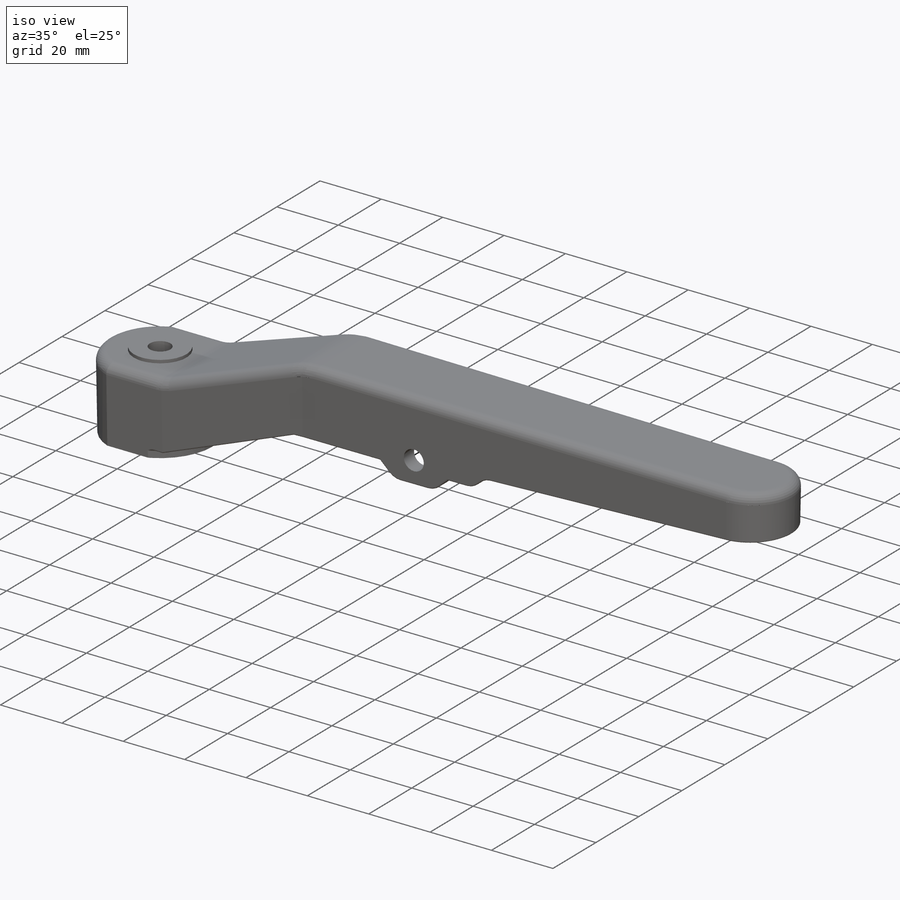
[diagram: iso view]
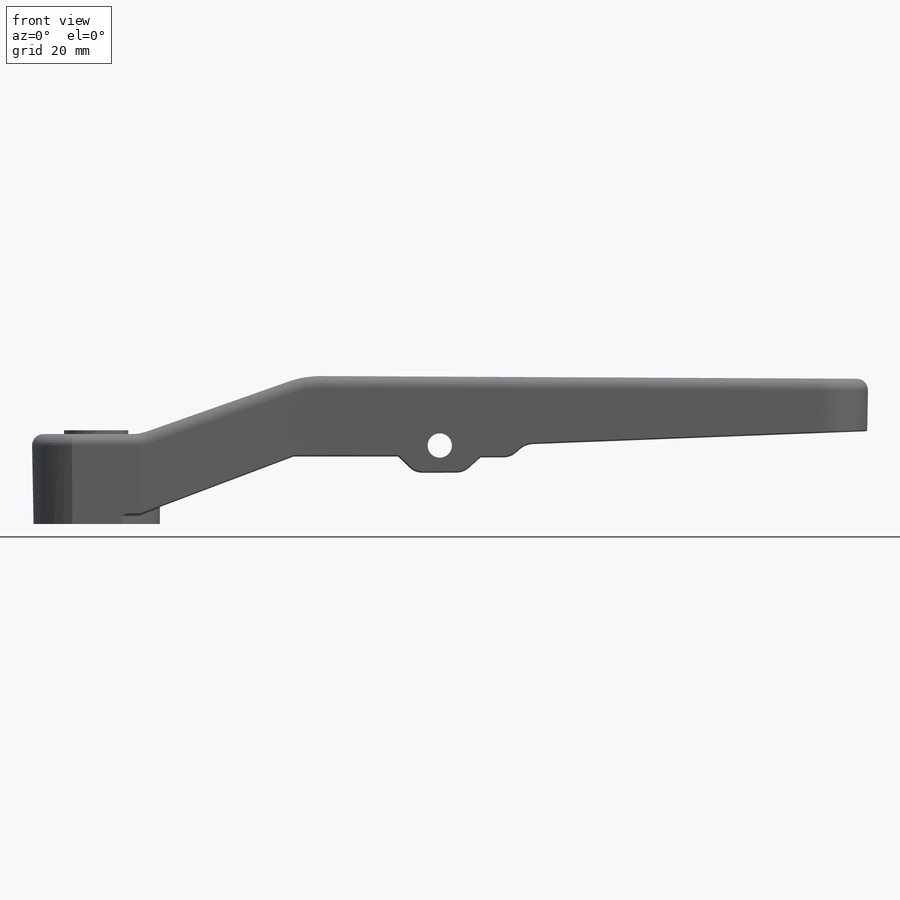
[diagram: front view]
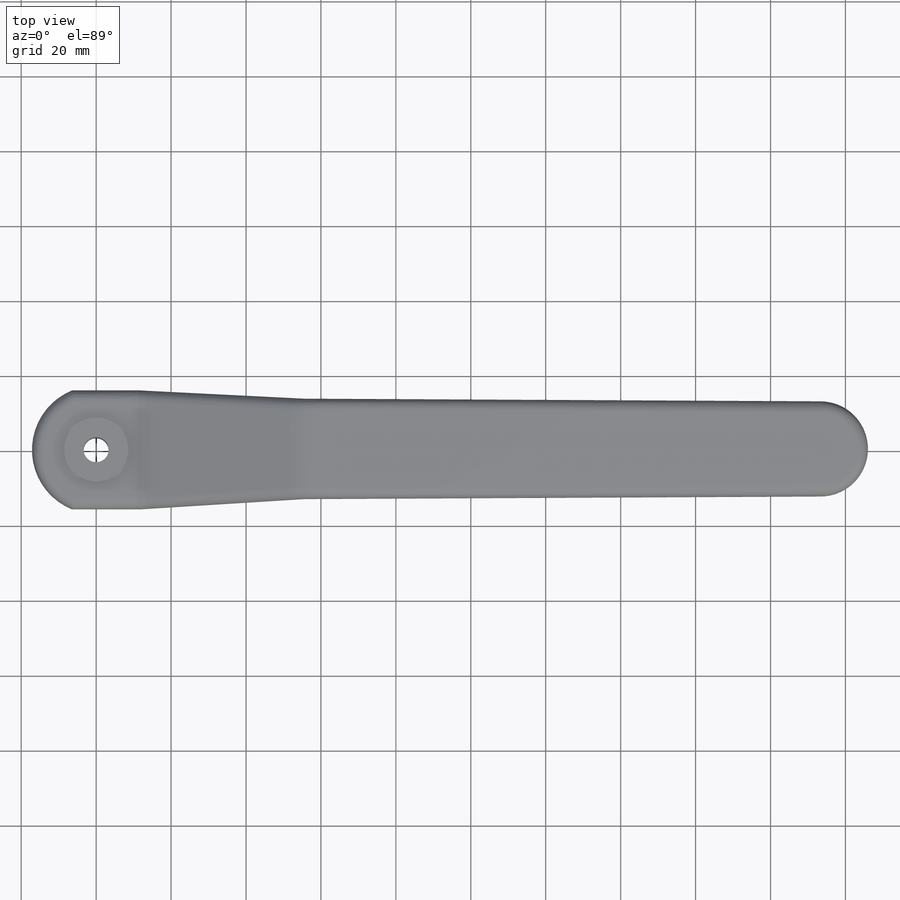
[diagram: top view]
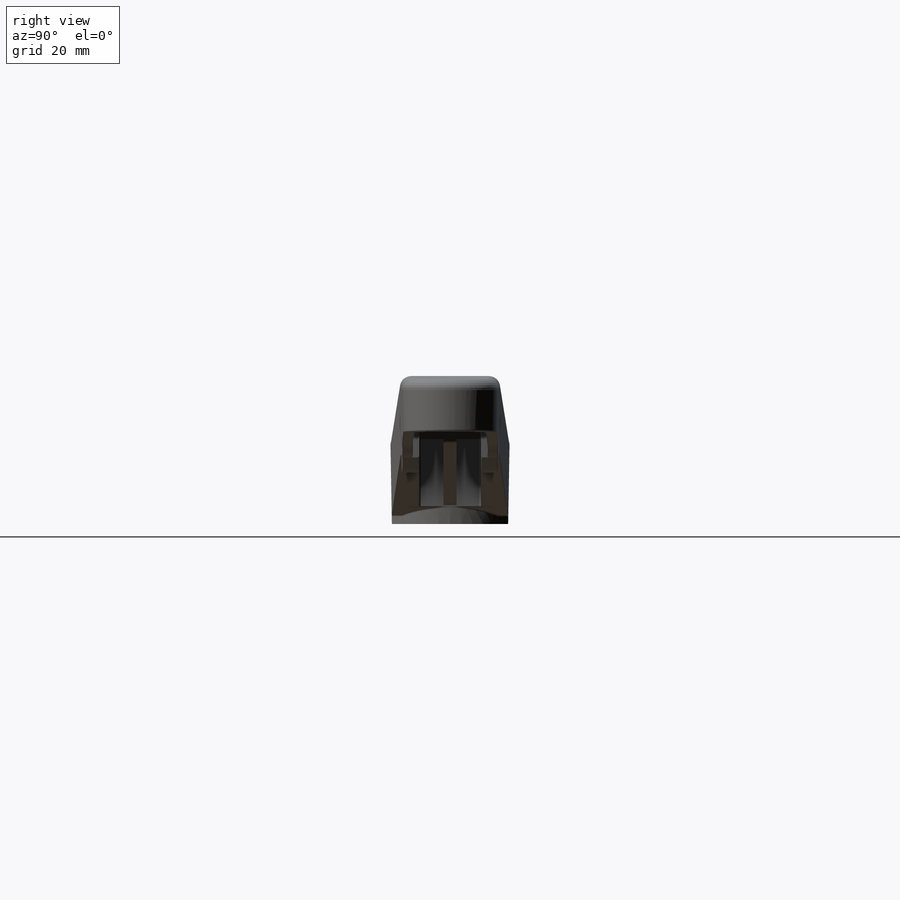
[diagram: right view]
SOLIDWORKS PART (.sldprt)
format: sldprt  version: not decoded by parser v0  size: 1,412,096 bytes
history: native  units: mm
features: sketch x23, fillet x15, extrude x10, cut_extrude x5, plane x4, mirror x2, material x1, shell x1, sweep x1 (+13 scaffold rows collapsed)
feature tree (75):
  scaffold x13  (default folders/planes/origin — collapsed)
  material  "Material <not specified>"
  sketch  "Sketch8"  dims[D1=17.0mm D2=31.5mm D3=18.0mm]
  extrude  "Boss-Extrude6"  Depth=21.5mm
  sketch  "Sketch9"  dims[D1=24.0mm D2=44.0mm]
  sketch  "Sketch10"  dims[D1=0.0mm]
  plane  "Plane1"
  sketch  "Sketch11"  dims[D1=26.0mm D2=26.0mm]
  sketch  "Sketch13"  dims[D1=150.0mm]
  sketch  "Sketch14"  dims[D1=0.0mm]
  plane  "Plane2"
  sketch  "Sketch15"  dims[D1=24.5mm D2=24.5mm D3=13.0mm]
  extrude  "Loft2"  [1 undecoded]
  sketch  "Sketch16"  dims[c1.D1=14.0mm c1.D2=17.5mm c1.D3=91.0mm c1.D4=21.5mm c1.D5=8.0mm c1.D6=150.0mm c2.D6=~0.286477deg c3.D6=28.0mm c3.D7=22.0mm c3.D8=125.0mm c3.D9=150.0mm c4.D9=~0.286477deg c5.D9=150.0mm c6.D9=~0.286477deg c7.D9=21.5mm c7.D10=194.0mm c7.D11=21.5mm c8.D10=19.0mm]
  cut_extrude  "Cut-Extrude3"  Depth=40mm
  plane  "Plane3"  Offset=22mm
  shell  "Shell1"  Thickness=2.8mm
  plane  "Plane4"  Offset=0mm
  sketch  "Sketch34"  dims[D1=6.5mm D2=6.5mm D3=4.5mm D4=4.5mm]
  cut_extrude  "Cut-Extrude5"  Depth=50mm
  fillet  "Fillet4"  Radius=5mm
  fillet  "Fillet5"  Radius=5mm
  sketch  "Sketch49"  dims[D1=34.0mm]
  extrude  "Boss-Extrude33"  [1 undecoded]
  sketch  "Sketch51"
  sketch  "Sketch52"  dims[D1=0.0mm]
  sweep  "Cut-Sweep1"
  sketch  "Sketch48"
  extrude  "Boss-Extrude31"  Depth=8.2mm
  mirror  "Mirror1"
  sketch  "Sketch35"  dims[c1.D1=4.2mm c1.D2=22.0mm c1.D3=96.8587mm c2.D1=103.5mm c2.D2=10.8413mm c2.D3=22.0mm c2.D4=11.0mm c3.D1=103.5mm c3.D2=4.2mm c4.D1=103.5mm c4.D2=4.2mm c4.D3=4.2mm c5.D1=~103.430001mm c5.D3=20.0mm c5.D4=4.2mm c6.D3=~19.891893mm c6.D2=~19.891893mm c6.D1=4.2mm c7.D2=23.0mm c7.D3=102.94mm c7.D4=~1.764965mm c8.D2=4.2mm]
  extrude  "Boss-Extrude34"  Depth=17.19mm
  sketch  "Sketch40"  dims[c1.D1=3.5mm c1.D2=34.4mm c2.D1=3.4mm c2.D2=34.4mm c3.D1=3.4mm c3.D2=34.4mm c3.D3=18.0mm c4.D2=34.5mm]
  extrude  "Boss-Extrude35"  Depth=9mm
  sketch  "Sketch57"  dims[D1=0.0mm]
  extrude  "Boss-Extrude39"  [1 undecoded]
  sketch  "Sketch53"  dims[c1.D1=0.5mm c1.D2=0.4mm c2.D1=3.5mm]
  sketch  "Sketch55"  dims[D1=34.0mm]
  extrude  "Boss-Extrude37"  Depth=2.5mm
  sketch  "Sketch42"  dims[D1=9.5mm D2=19.75mm]
  extrude  "Boss-Extrude30"  Depth=3.7mm
  sketch  "Sketch43"  dims[c1.D1=11.0mm c1.D2=11.0mm c1.D3=~7.778136mm c2.D3=90.0deg c2.D4=~11.000055mm c3.D4=45.0deg]
  cut_extrude  "Cut-Extrude6"  Depth=6.5mm
  sketch  "Sketch44"  dims[D1=6.7mm]
  cut_extrude  "Cut-Extrude7"  [1 undecoded]
  mirror  "Draft13"
  sketch  "Sketch46"  dims[c1.D1=6.5mm c1.D4=6.5mm c1.D2=7.25mm c1.D3=114.0mm c2.D1=7.25mm c2.D3=114.0mm]
  cut_extrude  "Cut-Extrude8"  Depth=2mm
  fillet  "Fillet6"  [1 undecoded]
  fillet  "Fillet7"  [1 undecoded]
  sketch  "Sketch54"  dims[D1=17.2mm]
  extrude  "Boss-Extrude36"  Depth=1mm
  fillet  "Fillet8"  Radius=25mm
  fillet  "Fillet15"  Radius=10mm
  fillet  "Fillet14"  Radius=3mm
  fillet  "Fillet16"  Radius=0.5mm
  fillet  "Fillet17"  Radius=0.5mm
  fillet  "Fillet24"  Radius=1mm
  fillet  "Fillet25"  Radius=1mm
  fillet  "Fillet26"  Radius=0.5mm
  fillet  "Fillet27"  Radius=0.5mm
  fillet  "Fillet28"  Radius=0.5mm
  fillet  "Fillet29"  Radius=0.5mm
decode coverage: 46 of 57 modeling features carry decoded parameters
note: ~ marks probable driven/reference dimensions
note: 6 parameter values undecoded
summary: no parameter record found for 6 features
note: suppression state not decoded; provenance and decode notes live in map.json
